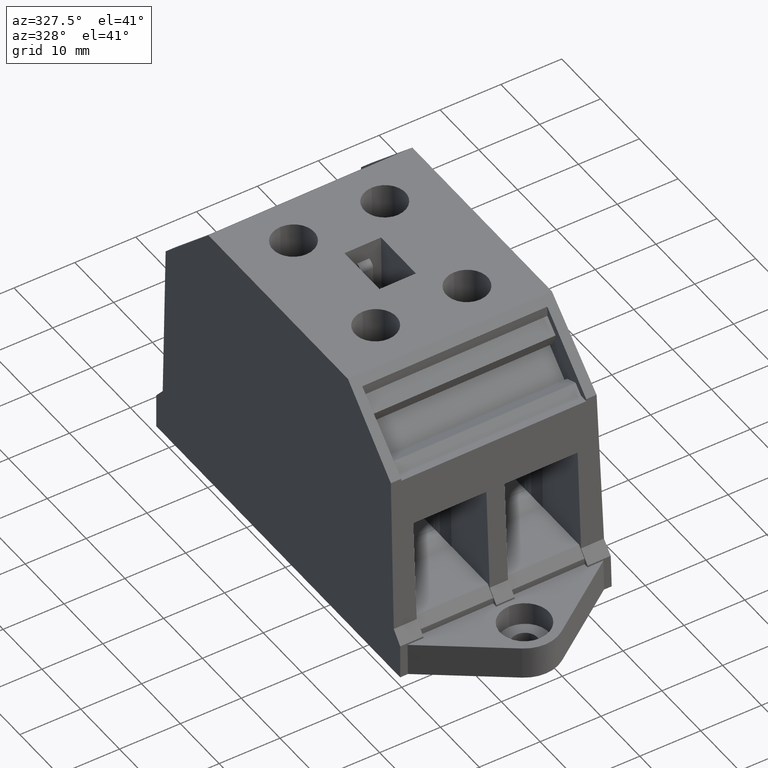
[diagram: clean part render]
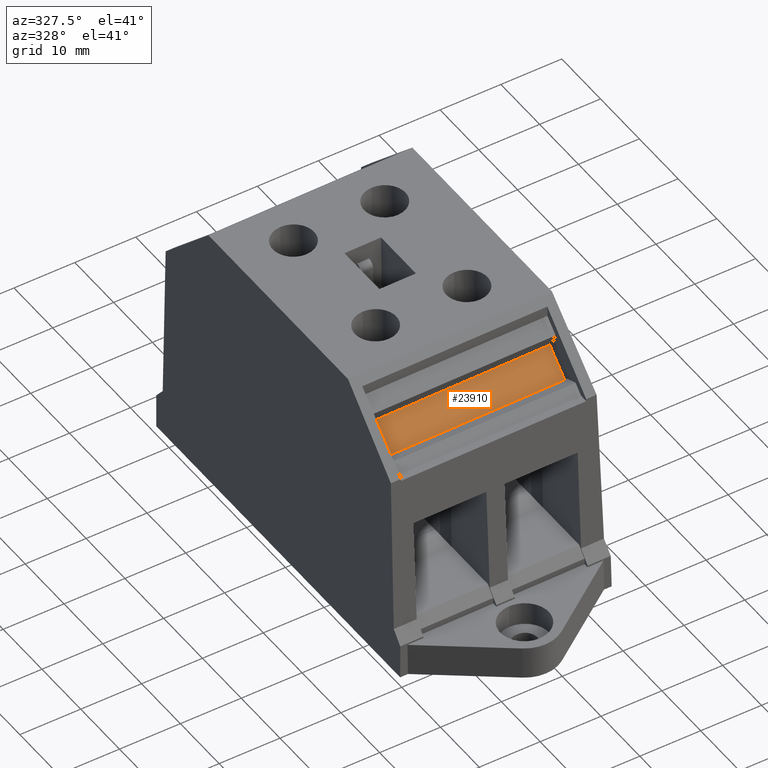
[diagram: same view with one face highlighted and labeled with its STEP entity id]
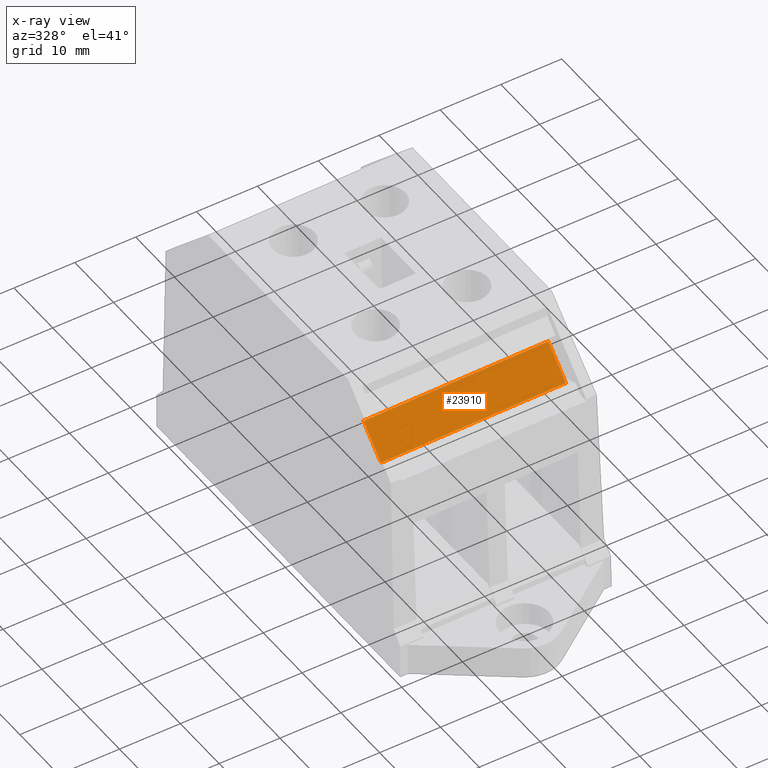
[diagram: x-ray of the same camera — body ghosted, the highlighted face saturated]
A machine part, auxiliary view. The second image highlights one B-rep face of the part: STEP entity #23910.
The next image is the same camera in x-ray: the body ghosted, the highlighted face saturated — about 0% of this face is hidden behind the body in this view.
In plain terms, the highlighted planar face has unit normal (-0.0099, -0.7071, 0.707).
Its self-contained STEP definition (entity closure, byte-faithful):
#20270=CARTESIAN_POINT('',(81.3748154742147,127.622577785219,22.7));
#20280=VERTEX_POINT('',#20270);
#20310=CARTESIAN_POINT('',(83.0343119758471,125.963081283587,22.7));
#20320=DIRECTION('',(0.707106781186548,-0.707106781186547,
-1.11022302462516E-16));
#20330=VECTOR('',#20320,1.);
#20340=LINE('',#20310,#20330);
#20350=CARTESIAN_POINT('',(85.8295587685459,123.167834490888,22.7));
#20360=VERTEX_POINT('',#20350);
#20370=EDGE_CURVE('',#20280,#20360,#20340,.T.);
#22040=CARTESIAN_POINT('',(85.8295587685459,123.167834490888,
-7.70000000000002));
#22050=VERTEX_POINT('',#22040);
#22080=CARTESIAN_POINT('',(83.0343119758471,125.963081283587,
-7.70000000000002));
#22090=DIRECTION('',(-0.707106781186548,0.707106781186547,
1.11022302462516E-16));
#22100=VECTOR('',#22090,1.);
#22110=LINE('',#22080,#22100);
#22120=CARTESIAN_POINT('',(81.3748154742147,127.622577785219,
-7.70000000000003));
#22130=VERTEX_POINT('',#22120);
#22140=EDGE_CURVE('',#22050,#22130,#22110,.T.);
#22610=CARTESIAN_POINT('',(85.8295587685459,123.167834490888,
18.8700046277446));
#22620=DIRECTION('',(6.65626961797559E-17,-5.20417042793042E-18,1.));
#22630=VECTOR('',#22620,1.);
#22640=LINE('',#22610,#22630);
#22650=EDGE_CURVE('',#22050,#20360,#22640,.T.);
#23750=CARTESIAN_POINT('',(85.5080935857147,123.489299673719,
-1.4210854715202E-14));
#23760=DIRECTION('',(0.707106781186547,0.707106781186548,
-4.33870296427252E-17));
#23770=DIRECTION('',(-0.707106781186548,0.707106781186547,
5.07468380428054E-17));
#23780=AXIS2_PLACEMENT_3D('',#23750,#23760,#23770);
#23790=PLANE('',#23780);
#23800=ORIENTED_EDGE('',*,*,#20370,.T.);
#23810=CARTESIAN_POINT('',(81.3748154742147,127.622577785219,
18.8700046277446));
#23820=DIRECTION('',(3.06792628759119E-17,3.06792628759136E-17,1.));
#23830=VECTOR('',#23820,1.);
#23840=LINE('',#23810,#23830);
#23850=EDGE_CURVE('',#22130,#20280,#23840,.T.);
#23860=ORIENTED_EDGE('',*,*,#23850,.T.);
#23870=ORIENTED_EDGE('',*,*,#22140,.T.);
#23880=ORIENTED_EDGE('',*,*,#22650,.F.);
#23890=EDGE_LOOP('',(#23880,#23870,#23860,#23800));
#23900=FACE_OUTER_BOUND('',#23890,.T.);
#23910=ADVANCED_FACE('',(#23900),#23790,.T.);